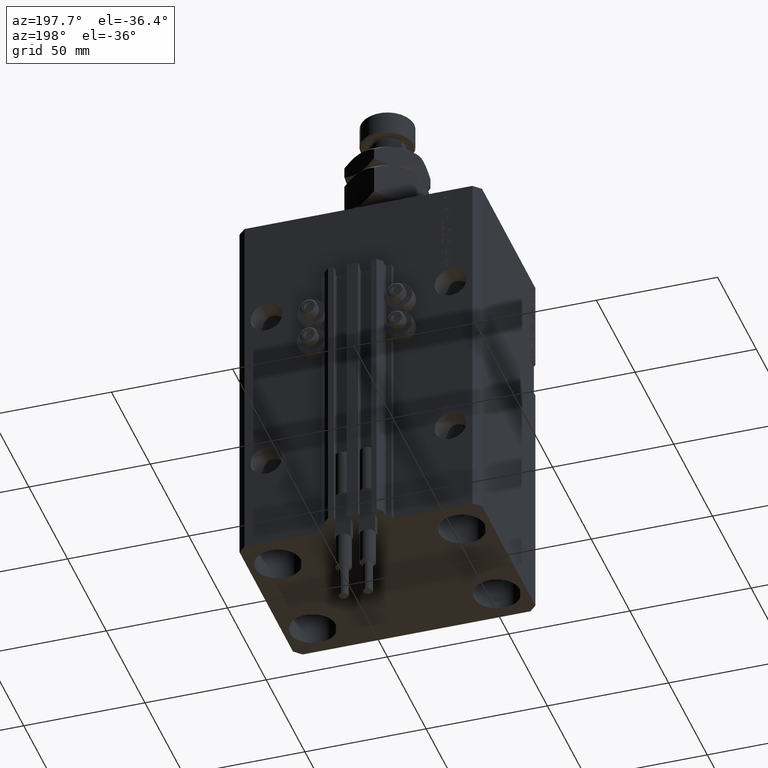
[diagram: clean part render]
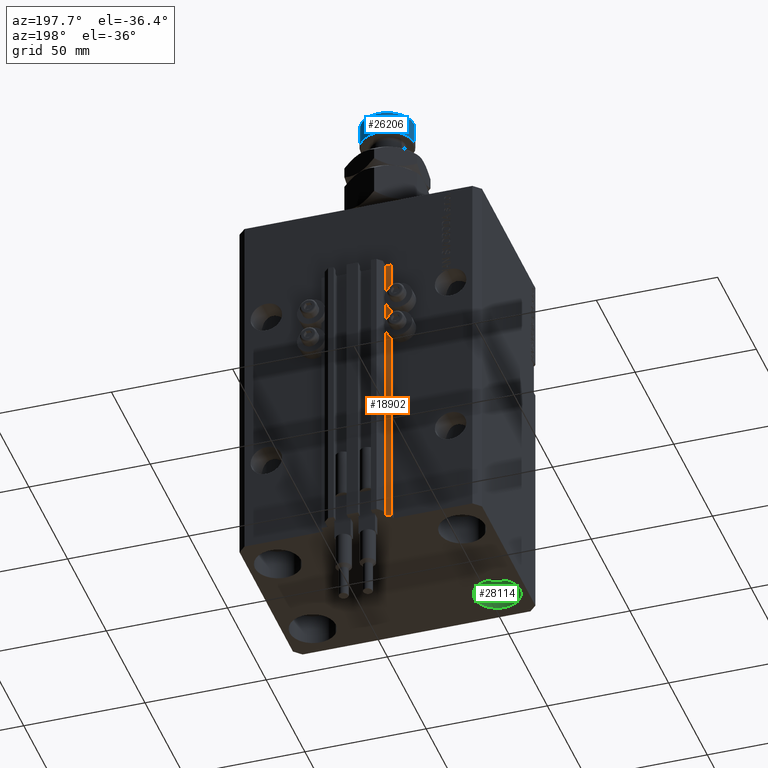
[diagram: same view with three faces highlighted in distinct colors, each labeled with its STEP entity id]
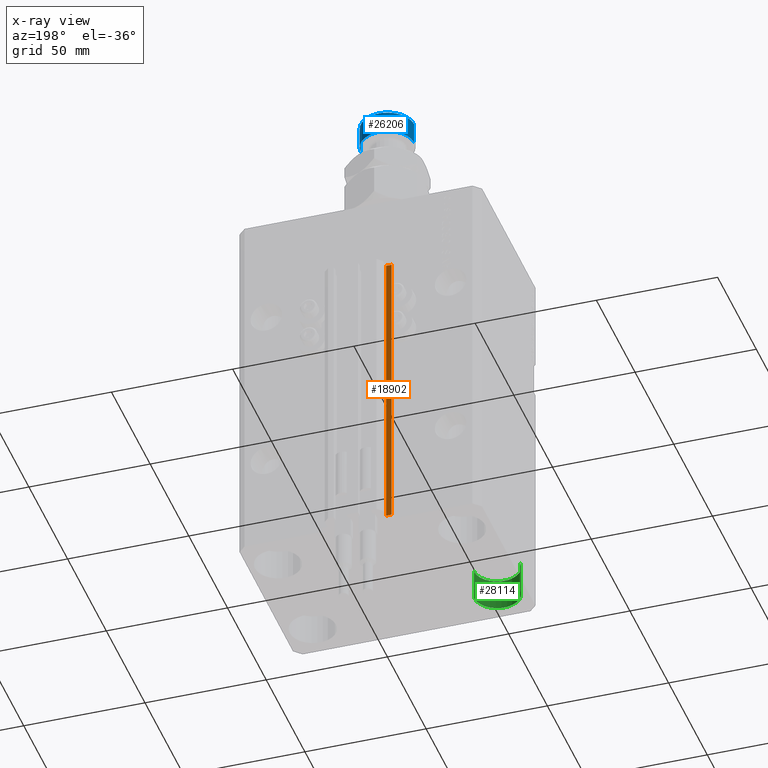
[diagram: x-ray of the same camera — body ghosted, the three highlighted faces saturated]
A machine part, auxiliary view with three faces highlighted in distinct colors.
The next image is the same camera in x-ray (body ghosted, the three faces saturated) — at least one of them is partly hidden behind the body in this view.
Their STEP definitions:

[orange] entity #18902 — the highlighted planar face has unit normal (0, 1, 0).
#3188 = EDGE_LOOP ( 'NONE', ( #50610, #34920, #37047, #23225 ) ) ;
#3218 = EDGE_CURVE ( 'NONE', #25516, #35061, #9266, .T. ) ;
#3431 = DIRECTION ( 'NONE',  ( 3.016910393003143253E-15, 1.000000000000000000, -0.000000000000000000 ) ) ;
#4405 = VECTOR ( 'NONE', #18291, 1000.000000000000000 ) ;
#5112 = CARTESIAN_POINT ( 'NONE',  ( -14.50000000000000000, 39.99999999999999289, -155.0000000000000000 ) ) ;
#9007 = DIRECTION ( 'NONE',  ( 0.000000000000000000, 0.000000000000000000, 1.000000000000000000 ) ) ;
#9266 = LINE ( 'NONE', #20279, #49750 ) ;
#9927 = CARTESIAN_POINT ( 'NONE',  ( -12.20000000000000107, 39.99999999999998579, -33.00000000000000000 ) ) ;
#10066 = VECTOR ( 'NONE', #21449, 1000.000000000000000 ) ;
#11181 = DIRECTION ( 'NONE',  ( -1.000000000000000000, 3.016910393003142859E-15, 0.000000000000000000 ) ) ;
#13991 = CARTESIAN_POINT ( 'NONE',  ( -12.20000000000000107, 39.99999999999998579, -33.00000000000000000 ) ) ;
#14998 = VECTOR ( 'NONE', #11181, 1000.000000000000000 ) ;
#18291 = DIRECTION ( 'NONE',  ( 0.000000000000000000, 0.000000000000000000, 1.000000000000000000 ) ) ;
#18902 = ADVANCED_FACE ( 'NONE', ( #38816 ), #22912, .T. ) ;
#19368 = LINE ( 'NONE', #26827, #14998 ) ;
#20279 = CARTESIAN_POINT ( 'NONE',  ( -14.50000000000000000, 39.99999999999999289, -155.0000000000000000 ) ) ;
#21449 = DIRECTION ( 'NONE',  ( -1.000000000000000000, 3.016910393003142859E-15, 0.000000000000000000 ) ) ;
#22912 = PLANE ( 'NONE',  #34288 ) ;
#23225 = ORIENTED_EDGE ( 'NONE', *, *, #3218, .T. ) ;
#24944 = VERTEX_POINT ( 'NONE', #13991 ) ;
#25516 = VERTEX_POINT ( 'NONE', #5112 ) ;
#25929 = VERTEX_POINT ( 'NONE', #50148 ) ;
#25996 = LINE ( 'NONE', #33687, #4405 ) ;
#26827 = CARTESIAN_POINT ( 'NONE',  ( -12.20000000000000107, 39.99999999999998579, -155.0000000000000000 ) ) ;
#27338 = CARTESIAN_POINT ( 'NONE',  ( -14.50000000000000000, 39.99999999999999289, -33.00000000000000000 ) ) ;
#30860 = CARTESIAN_POINT ( 'NONE',  ( -12.20000000000000107, 39.99999999999998579, -155.0000000000000000 ) ) ;
#33687 = CARTESIAN_POINT ( 'NONE',  ( -12.20000000000000107, 39.99999999999998579, -155.0000000000000000 ) ) ;
#34288 = AXIS2_PLACEMENT_3D ( 'NONE', #30860, #3431, #43413 ) ;
#34920 = ORIENTED_EDGE ( 'NONE', *, *, #46913, .F. ) ;
#35061 = VERTEX_POINT ( 'NONE', #27338 ) ;
#37047 = ORIENTED_EDGE ( 'NONE', *, *, #41469, .T. ) ;
#38816 = FACE_OUTER_BOUND ( 'NONE', #3188, .T. ) ;
#40338 = EDGE_CURVE ( 'NONE', #24944, #35061, #44536, .T. ) ;
#41469 = EDGE_CURVE ( 'NONE', #25929, #25516, #19368, .T. ) ;
#43413 = DIRECTION ( 'NONE',  ( -1.000000000000000000, 3.016910393003143253E-15, 0.000000000000000000 ) ) ;
#44536 = LINE ( 'NONE', #9927, #10066 ) ;
#46913 = EDGE_CURVE ( 'NONE', #25929, #24944, #25996, .T. ) ;
#49750 = VECTOR ( 'NONE', #9007, 1000.000000000000000 ) ;
#50148 = CARTESIAN_POINT ( 'NONE',  ( -12.20000000000000107, 39.99999999999998579, -155.0000000000000000 ) ) ;
#50610 = ORIENTED_EDGE ( 'NONE', *, *, #40338, .F. ) ;

[blue] entity #26206 — the highlighted cylindrical surface (edge-blend (fillet) strip) has radius 11 mm, axis along (-0, -0, -1).
#2904 = DIRECTION ( 'NONE',  ( -0.000000000000000000, -0.000000000000000000, -1.000000000000000000 ) ) ;
#3162 = CARTESIAN_POINT ( 'NONE',  ( 0.000000000000000000, 0.000000000000000000, 45.00000000000000711 ) ) ;
#8251 = CARTESIAN_POINT ( 'NONE',  ( -11.00000000000000000, 0.000000000000000000, 44.50000000000001421 ) ) ;
#8349 = LINE ( 'NONE', #43221, #47284 ) ;
#8544 = DIRECTION ( 'NONE',  ( 1.000000000000000000, 0.000000000000000000, 0.000000000000000000 ) ) ;
#15107 = LINE ( 'NONE', #19949, #25397 ) ;
#15204 = AXIS2_PLACEMENT_3D ( 'NONE', #37924, #41764, #26376 ) ;
#16003 = EDGE_CURVE ( 'NONE', #21996, #27579, #8349, .T. ) ;
#17175 = CARTESIAN_POINT ( 'NONE',  ( 11.00000000000000000, 1.347111479062088405E-15, 35.50000000000001421 ) ) ;
#17655 = VERTEX_POINT ( 'NONE', #47057 ) ;
#19752 = ORIENTED_EDGE ( 'NONE', *, *, #16003, .T. ) ;
#19949 = CARTESIAN_POINT ( 'NONE',  ( -11.00000000000000000, 0.000000000000000000, 45.00000000000000711 ) ) ;
#21288 = CIRCLE ( 'NONE', #34398, 11.00000000000000000 ) ;
#21996 = VERTEX_POINT ( 'NONE', #35993 ) ;
#23983 = DIRECTION ( 'NONE',  ( -0.000000000000000000, -0.000000000000000000, -1.000000000000000000 ) ) ;
#25397 = VECTOR ( 'NONE', #38710, 1000.000000000000000 ) ;
#25493 = ORIENTED_EDGE ( 'NONE', *, *, #34710, .F. ) ;
#26206 = ADVANCED_FACE ( 'NONE', ( #31091 ), #41883, .T. ) ;
#26376 = DIRECTION ( 'NONE',  ( 1.000000000000000000, 0.000000000000000000, 0.000000000000000000 ) ) ;
#27579 = VERTEX_POINT ( 'NONE', #17175 ) ;
#28035 = CARTESIAN_POINT ( 'NONE',  ( 0.000000000000000000, 0.000000000000000000, 35.50000000000001421 ) ) ;
#28481 = ORIENTED_EDGE ( 'NONE', *, *, #34487, .T. ) ;
#31091 = FACE_OUTER_BOUND ( 'NONE', #32545, .T. ) ;
#32545 = EDGE_LOOP ( 'NONE', ( #38165, #19752, #28481, #25493 ) ) ;
#34398 = AXIS2_PLACEMENT_3D ( 'NONE', #28035, #43673, #8544 ) ;
#34487 = EDGE_CURVE ( 'NONE', #27579, #17655, #21288, .T. ) ;
#34710 = EDGE_CURVE ( 'NONE', #37852, #17655, #15107, .T. ) ;
#35993 = CARTESIAN_POINT ( 'NONE',  ( 11.00000000000000000, 1.347111479062088405E-15, 44.50000000000001421 ) ) ;
#37734 = AXIS2_PLACEMENT_3D ( 'NONE', #3162, #2904, #38549 ) ;
#37852 = VERTEX_POINT ( 'NONE', #8251 ) ;
#37924 = CARTESIAN_POINT ( 'NONE',  ( 0.000000000000000000, 0.000000000000000000, 44.50000000000001421 ) ) ;
#38165 = ORIENTED_EDGE ( 'NONE', *, *, #50005, .T. ) ;
#38549 = DIRECTION ( 'NONE',  ( -1.000000000000000000, 0.000000000000000000, 0.000000000000000000 ) ) ;
#38710 = DIRECTION ( 'NONE',  ( -0.000000000000000000, -0.000000000000000000, -1.000000000000000000 ) ) ;
#40616 = CIRCLE ( 'NONE', #15204, 11.00000000000000000 ) ;
#41764 = DIRECTION ( 'NONE',  ( 0.000000000000000000, 0.000000000000000000, -1.000000000000000000 ) ) ;
#41883 = CYLINDRICAL_SURFACE ( 'NONE', #37734, 11.00000000000000000 ) ;
#43221 = CARTESIAN_POINT ( 'NONE',  ( 11.00000000000000000, 1.347111479062088405E-15, 45.00000000000000711 ) ) ;
#43673 = DIRECTION ( 'NONE',  ( -0.000000000000000000, -0.000000000000000000, 1.000000000000000000 ) ) ;
#47057 = CARTESIAN_POINT ( 'NONE',  ( -11.00000000000000000, 0.000000000000000000, 35.50000000000001421 ) ) ;
#47284 = VECTOR ( 'NONE', #23983, 1000.000000000000000 ) ;
#50005 = EDGE_CURVE ( 'NONE', #37852, #21996, #40616, .T. ) ;

[green] entity #28114 — the highlighted cylindrical surface (edge-blend (fillet) strip) has radius 9.5 mm, axis along (-0, -0, -1).
#2086 = VERTEX_POINT ( 'NONE', #26532 ) ;
#2133 = EDGE_CURVE ( 'NONE', #44215, #2086, #39889, .T. ) ;
#7930 = AXIS2_PLACEMENT_3D ( 'NONE', #26786, #11638, #27033 ) ;
#10548 = DIRECTION ( 'NONE',  ( -0.000000000000000000, -0.000000000000000000, 1.000000000000000000 ) ) ;
#11191 = AXIS2_PLACEMENT_3D ( 'NONE', #14385, #10548, #26181 ) ;
#11360 = CARTESIAN_POINT ( 'NONE',  ( -28.50000000000000355, -22.50000000000000000, -142.0000000000000000 ) ) ;
#11638 = DIRECTION ( 'NONE',  ( -0.000000000000000000, -0.000000000000000000, 1.000000000000000000 ) ) ;
#12678 = FACE_OUTER_BOUND ( 'NONE', #37704, .T. ) ;
#14378 = EDGE_CURVE ( 'NONE', #37752, #37292, #19378, .T. ) ;
#14385 = CARTESIAN_POINT ( 'NONE',  ( -38.00000000000000711, -22.50000000000000000, -155.0000000000000000 ) ) ;
#14882 = AXIS2_PLACEMENT_3D ( 'NONE', #32421, #43976, #36021 ) ;
#16281 = DIRECTION ( 'NONE',  ( -0.000000000000000000, -0.000000000000000000, -1.000000000000000000 ) ) ;
#18215 = ORIENTED_EDGE ( 'NONE', *, *, #47029, .T. ) ;
#19378 = CIRCLE ( 'NONE', #11191, 9.500000000000001776 ) ;
#19867 = CYLINDRICAL_SURFACE ( 'NONE', #14882, 9.500000000000001776 ) ;
#21024 = CARTESIAN_POINT ( 'NONE',  ( -47.50000000000000711, -22.50000000000000000, -142.0000000000000000 ) ) ;
#21358 = CARTESIAN_POINT ( 'NONE',  ( -47.50000000000000711, -22.50000000000000000, -155.0000000000000000 ) ) ;
#24237 = ORIENTED_EDGE ( 'NONE', *, *, #2133, .T. ) ;
#26181 = DIRECTION ( 'NONE',  ( 1.000000000000000000, 0.000000000000000000, 0.000000000000000000 ) ) ;
#26532 = CARTESIAN_POINT ( 'NONE',  ( -28.50000000000000355, -22.50000000000000000, -142.0000000000000000 ) ) ;
#26786 = CARTESIAN_POINT ( 'NONE',  ( -38.00000000000000711, -22.50000000000000000, -142.0000000000000000 ) ) ;
#26787 = EDGE_CURVE ( 'NONE', #44215, #37752, #36530, .T. ) ;
#27033 = DIRECTION ( 'NONE',  ( 1.000000000000000000, 0.000000000000000000, 0.000000000000000000 ) ) ;
#28114 = ADVANCED_FACE ( 'NONE', ( #12678 ), #19867, .F. ) ;
#32308 = ORIENTED_EDGE ( 'NONE', *, *, #26787, .F. ) ;
#32421 = CARTESIAN_POINT ( 'NONE',  ( -38.00000000000000711, -22.50000000000000000, -142.0000000000000000 ) ) ;
#36021 = DIRECTION ( 'NONE',  ( -1.000000000000000000, 0.000000000000000000, 0.000000000000000000 ) ) ;
#36530 = LINE ( 'NONE', #40638, #43462 ) ;
#37292 = VERTEX_POINT ( 'NONE', #44007 ) ;
#37704 = EDGE_LOOP ( 'NONE', ( #24237, #18215, #46795, #32308 ) ) ;
#37752 = VERTEX_POINT ( 'NONE', #21358 ) ;
#39055 = DIRECTION ( 'NONE',  ( -0.000000000000000000, -0.000000000000000000, -1.000000000000000000 ) ) ;
#39889 = CIRCLE ( 'NONE', #7930, 9.500000000000001776 ) ;
#40638 = CARTESIAN_POINT ( 'NONE',  ( -47.50000000000000711, -22.50000000000000000, -142.0000000000000000 ) ) ;
#43462 = VECTOR ( 'NONE', #16281, 1000.000000000000000 ) ;
#43976 = DIRECTION ( 'NONE',  ( -0.000000000000000000, -0.000000000000000000, -1.000000000000000000 ) ) ;
#44007 = CARTESIAN_POINT ( 'NONE',  ( -28.50000000000000355, -22.50000000000000000, -155.0000000000000000 ) ) ;
#44215 = VERTEX_POINT ( 'NONE', #21024 ) ;
#46795 = ORIENTED_EDGE ( 'NONE', *, *, #14378, .F. ) ;
#47029 = EDGE_CURVE ( 'NONE', #2086, #37292, #50596, .T. ) ;
#50317 = VECTOR ( 'NONE', #39055, 1000.000000000000000 ) ;
#50596 = LINE ( 'NONE', #11360, #50317 ) ;